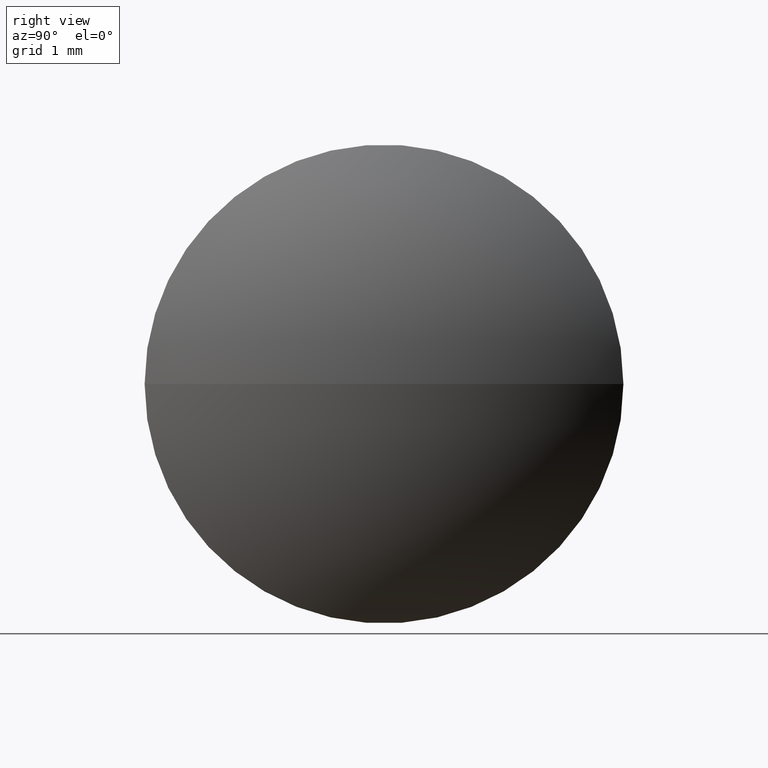
[diagram: clean part render]
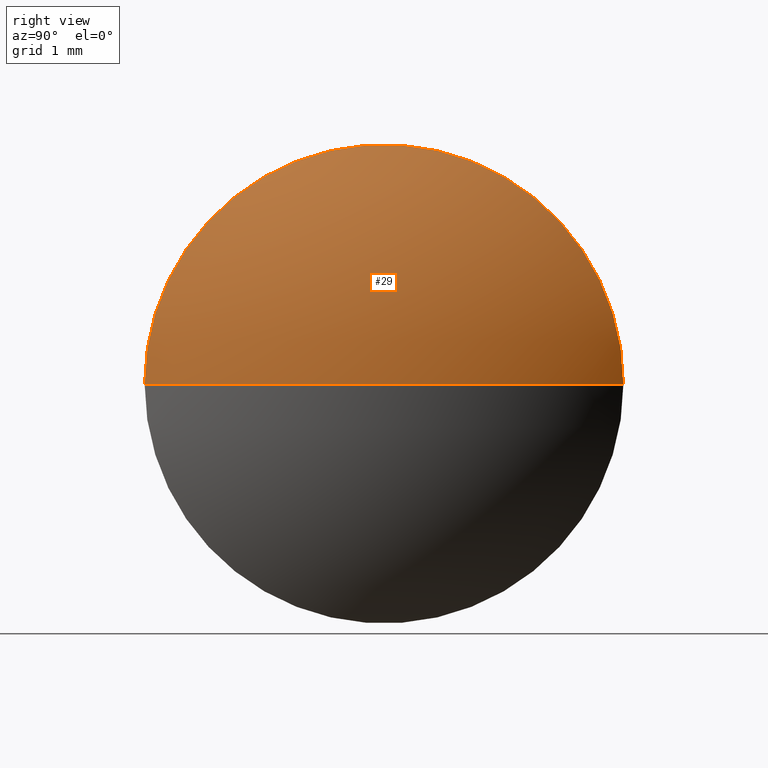
[diagram: same view with one face highlighted and labeled with its STEP entity id]
A machine part, right view. The second image highlights one B-rep face of the part: STEP entity #29.
In plain terms, the highlighted spherical surface has radius 5.1151 mm.
Its self-contained STEP definition (entity closure, byte-faithful):
#2 = CARTESIAN_POINT ( 'NONE',  ( 18.16424793177497700, 12.05832724590804600, 0.0000000000000000000 ) ) ;
#6 = FACE_OUTER_BOUND ( 'NONE', #210, .T. ) ;
#28 = DIRECTION ( 'NONE',  ( 0.0000000000000000000, -1.000000000000000000, -1.224646799147353000E-016 ) ) ;
#29 = ADVANCED_FACE ( 'NONE', ( #6 ), #58, .T. ) ;
#37 = CARTESIAN_POINT ( 'NONE',  ( 18.16424793177497700, 12.05832724590804600, 0.0000000000000000000 ) ) ;
#51 = AXIS2_PLACEMENT_3D ( 'NONE', #2, #192, #28 ) ;
#54 = CARTESIAN_POINT ( 'NONE',  ( 22.19435214883362000, 12.05832724590804100, 0.0000000000000000000 ) ) ;
#55 = AXIS2_PLACEMENT_3D ( 'NONE', #54, #238, #156 ) ;
#58 = SPHERICAL_SURFACE ( 'NONE', #271, 5.115099217058636700 ) ;
#70 = DIRECTION ( 'NONE',  ( -1.000000000000000000, 0.0000000000000000000, 0.0000000000000000000 ) ) ;
#80 = DIRECTION ( 'NONE',  ( -1.356551184924490700E-015, -1.000000000000000000, 0.0000000000000000000 ) ) ;
#86 = CIRCLE ( 'NONE', #186, 5.115099217058636700 ) ;
#87 = VERTEX_POINT ( 'NONE', #267 ) ;
#94 = VERTEX_POINT ( 'NONE', #159 ) ;
#96 = CARTESIAN_POINT ( 'NONE',  ( 22.19435214883361600, 8.908327245908040500, 0.0000000000000000000 ) ) ;
#101 = ORIENTED_EDGE ( 'NONE', *, *, #140, .F. ) ;
#140 = EDGE_CURVE ( 'NONE', #289, #87, #209, .T. ) ;
#155 = ORIENTED_EDGE ( 'NONE', *, *, #251, .F. ) ;
#156 = DIRECTION ( 'NONE',  ( -1.101411730778926900E-015, -1.000000000000000000, 0.0000000000000000000 ) ) ;
#157 = CARTESIAN_POINT ( 'NONE',  ( 18.16424793177497700, 12.05832724590804600, 0.0000000000000000000 ) ) ;
#159 = CARTESIAN_POINT ( 'NONE',  ( 23.27934714883361500, 12.05832724590803900, 0.0000000000000000000 ) ) ;
#186 = AXIS2_PLACEMENT_3D ( 'NONE', #37, #228, #70 ) ;
#192 = DIRECTION ( 'NONE',  ( -1.619172340779310500E-031, -1.224646799147353200E-016, 1.000000000000000000 ) ) ;
#209 = CIRCLE ( 'NONE', #55, 3.149999999999995000 ) ;
#210 = EDGE_LOOP ( 'NONE', ( #155, #241, #101 ) ) ;
#228 = DIRECTION ( 'NONE',  ( 0.0000000000000000000, -0.0000000000000000000, -1.000000000000000000 ) ) ;
#238 = DIRECTION ( 'NONE',  ( -1.000000000000000000, 1.322154552567026900E-015, -0.0000000000000000000 ) ) ;
#241 = ORIENTED_EDGE ( 'NONE', *, *, #297, .T. ) ;
#251 = EDGE_CURVE ( 'NONE', #94, #289, #86, .T. ) ;
#267 = CARTESIAN_POINT ( 'NONE',  ( 22.19435214883362300, 15.20832724590804100, 3.857637417314162200E-016 ) ) ;
#271 = AXIS2_PLACEMENT_3D ( 'NONE', #157, #298, #80 ) ;
#288 = CIRCLE ( 'NONE', #51, 5.115099217058636700 ) ;
#289 = VERTEX_POINT ( 'NONE', #96 ) ;
#297 = EDGE_CURVE ( 'NONE', #94, #87, #288, .T. ) ;
#298 = DIRECTION ( 'NONE',  ( 0.0000000000000000000, 0.0000000000000000000, 1.000000000000000000 ) ) ;